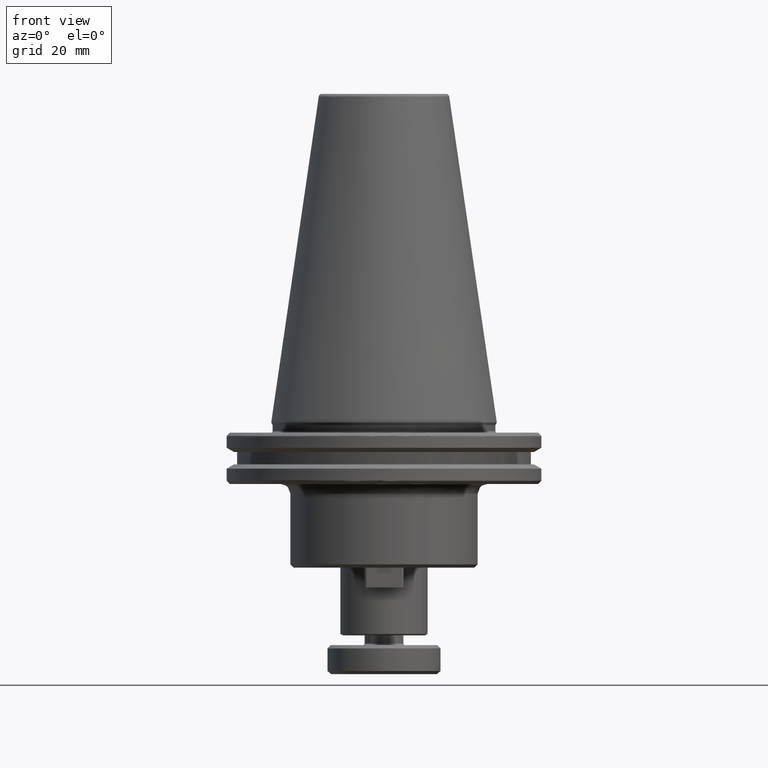
[diagram: clean part render]
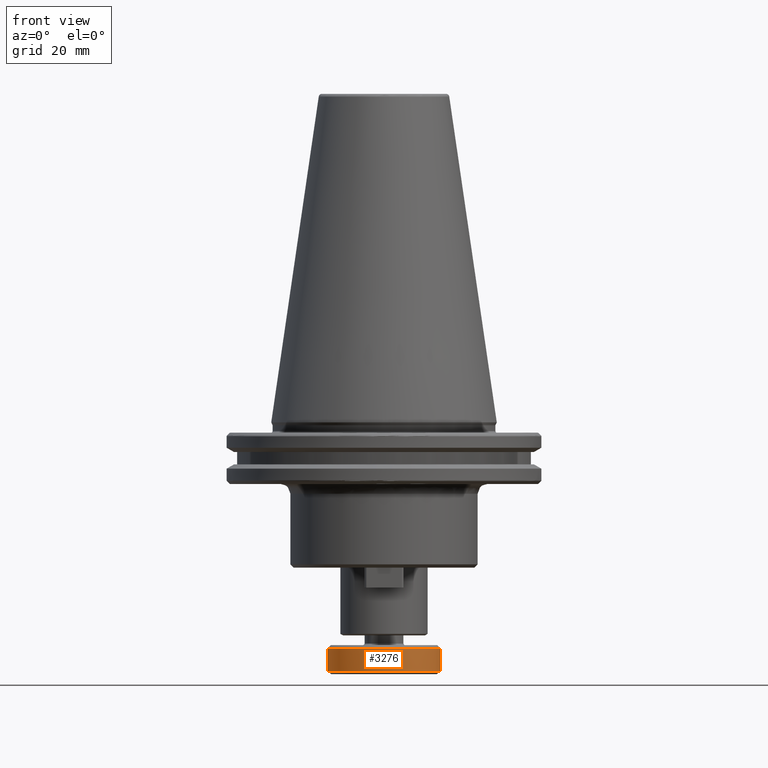
[diagram: same view with one face highlighted and labeled with its STEP entity id]
A machine part, front view. The second image highlights one B-rep face of the part: STEP entity #3276.
In plain terms, the highlighted cylindrical surface (partial cylindrical patch) has radius 17.5 mm, axis along (0, 0, 1).
Its self-contained STEP definition (entity closure, byte-faithful):
#66 = DIRECTION ( 'NONE',  ( 0.0000000000000000000, 0.0000000000000000000, 1.000000000000000000 ) ) ;
#117 = VERTEX_POINT ( 'NONE', #1767 ) ;
#217 = VERTEX_POINT ( 'NONE', #2963 ) ;
#224 = DIRECTION ( 'NONE',  ( 0.0000000000000000000, 0.0000000000000000000, 1.000000000000000000 ) ) ;
#302 = CARTESIAN_POINT ( 'NONE',  ( 0.0000000000000000000, 0.0000000000000000000, -77.00000000000000000 ) ) ;
#324 = ORIENTED_EDGE ( 'NONE', *, *, #1115, .T. ) ;
#335 = DIRECTION ( 'NONE',  ( 1.000000000000000000, 0.0000000000000000000, 0.0000000000000000000 ) ) ;
#645 = CYLINDRICAL_SURFACE ( 'NONE', #2679, 17.50000000000000000 ) ;
#652 = EDGE_CURVE ( 'NONE', #117, #2270, #2931, .T. ) ;
#813 = VECTOR ( 'NONE', #1797, 1000.000000000000000 ) ;
#1115 = EDGE_CURVE ( 'NONE', #217, #2609, #3429, .T. ) ;
#1153 = VERTEX_POINT ( 'NONE', #4076 ) ;
#1299 = EDGE_CURVE ( 'NONE', #1153, #2609, #1833, .T. ) ;
#1396 = ORIENTED_EDGE ( 'NONE', *, *, #1299, .F. ) ;
#1684 = CIRCLE ( 'NONE', #1828, 17.50000000000000000 ) ;
#1767 = CARTESIAN_POINT ( 'NONE',  ( -17.50000000000000000, 2.143131898507868200E-015, -77.00000000000000000 ) ) ;
#1780 = VECTOR ( 'NONE', #4114, 1000.000000000000000 ) ;
#1797 = DIRECTION ( 'NONE',  ( 0.0000000000000000000, 0.0000000000000000000, 1.000000000000000000 ) ) ;
#1828 = AXIS2_PLACEMENT_3D ( 'NONE', #1944, #4199, #2280 ) ;
#1833 = CIRCLE ( 'NONE', #3659, 17.50000000000000000 ) ;
#1944 = CARTESIAN_POINT ( 'NONE',  ( 0.0000000000000000000, 0.0000000000000000000, -77.00000000000000000 ) ) ;
#2108 = DIRECTION ( 'NONE',  ( 1.000000000000000000, 0.0000000000000000000, 0.0000000000000000000 ) ) ;
#2270 = VERTEX_POINT ( 'NONE', #3795 ) ;
#2280 = DIRECTION ( 'NONE',  ( 1.000000000000000000, 0.0000000000000000000, 0.0000000000000000000 ) ) ;
#2338 = CARTESIAN_POINT ( 'NONE',  ( 0.0000000000000000000, 0.0000000000000000000, 0.0000000000000000000 ) ) ;
#2609 = VERTEX_POINT ( 'NONE', #3747 ) ;
#2679 = AXIS2_PLACEMENT_3D ( 'NONE', #2338, #224, #335 ) ;
#2863 = LINE ( 'NONE', #3758, #813 ) ;
#2892 = ORIENTED_EDGE ( 'NONE', *, *, #652, .T. ) ;
#2931 = CIRCLE ( 'NONE', #4001, 17.50000000000000000 ) ;
#2963 = CARTESIAN_POINT ( 'NONE',  ( 17.50000000000000000, 0.0000000000000000000, -77.00000000000000000 ) ) ;
#2977 = ORIENTED_EDGE ( 'NONE', *, *, #4200, .T. ) ;
#3013 = EDGE_CURVE ( 'NONE', #117, #1153, #2863, .T. ) ;
#3276 = ADVANCED_FACE ( 'NONE', ( #3466 ), #645, .T. ) ;
#3359 = ORIENTED_EDGE ( 'NONE', *, *, #3013, .F. ) ;
#3381 = DIRECTION ( 'NONE',  ( -0.0000000000000000000, -0.0000000000000000000, 1.000000000000000000 ) ) ;
#3382 = CARTESIAN_POINT ( 'NONE',  ( 0.0000000000000000000, 0.0000000000000000000, -70.00000000000000000 ) ) ;
#3429 = LINE ( 'NONE', #4230, #1780 ) ;
#3466 = FACE_OUTER_BOUND ( 'NONE', #3507, .T. ) ;
#3507 = EDGE_LOOP ( 'NONE', ( #3359, #2892, #2977, #324, #1396 ) ) ;
#3659 = AXIS2_PLACEMENT_3D ( 'NONE', #3382, #3381, #4193 ) ;
#3747 = CARTESIAN_POINT ( 'NONE',  ( 17.50000000000000000, 0.0000000000000000000, -70.00000000000000000 ) ) ;
#3758 = CARTESIAN_POINT ( 'NONE',  ( -17.50000000000000000, 2.143131898507868200E-015, 0.0000000000000000000 ) ) ;
#3795 = CARTESIAN_POINT ( 'NONE',  ( 0.0000000000000000000, -17.50000000000001400, -77.00000000000000000 ) ) ;
#4001 = AXIS2_PLACEMENT_3D ( 'NONE', #302, #66, #2108 ) ;
#4076 = CARTESIAN_POINT ( 'NONE',  ( -17.50000000000000000, 2.143131898507868200E-015, -70.00000000000000000 ) ) ;
#4114 = DIRECTION ( 'NONE',  ( 0.0000000000000000000, 0.0000000000000000000, 1.000000000000000000 ) ) ;
#4193 = DIRECTION ( 'NONE',  ( -1.000000000000000000, 0.0000000000000000000, 0.0000000000000000000 ) ) ;
#4199 = DIRECTION ( 'NONE',  ( 0.0000000000000000000, 0.0000000000000000000, 1.000000000000000000 ) ) ;
#4200 = EDGE_CURVE ( 'NONE', #2270, #217, #1684, .T. ) ;
#4230 = CARTESIAN_POINT ( 'NONE',  ( 17.50000000000000000, 0.0000000000000000000, 0.0000000000000000000 ) ) ;